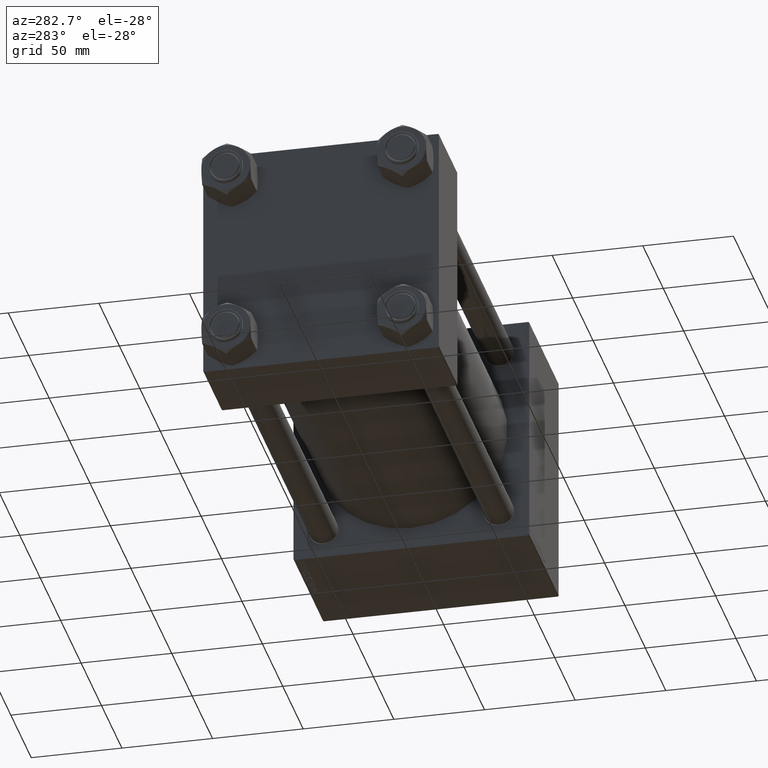
[diagram: clean part render]
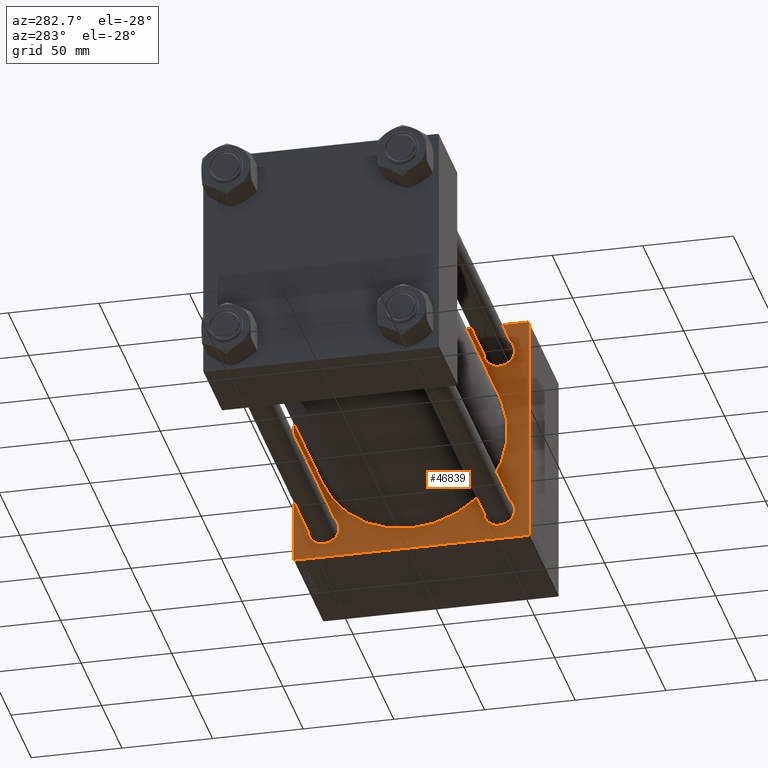
[diagram: same view with one face highlighted and labeled with its STEP entity id]
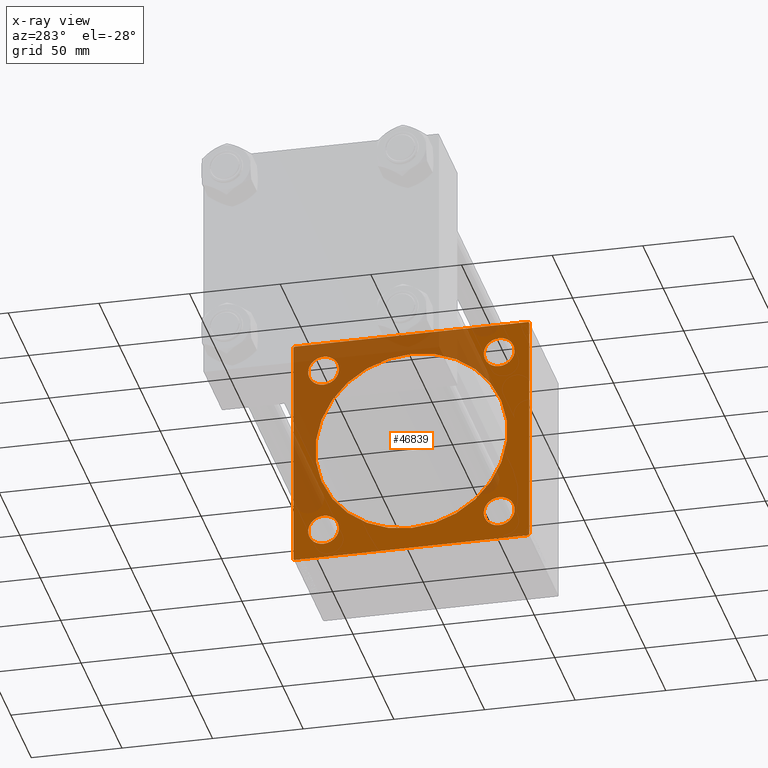
[diagram: x-ray of the same camera — body ghosted, the highlighted face saturated]
A machine part, auxiliary view. The second image highlights one B-rep face of the part: STEP entity #46839.
The next image is the same camera in x-ray: the body ghosted, the highlighted face saturated — about 41% of this face is hidden behind the body in this view.
In plain terms, the highlighted planar face has unit normal (-1, 0, 0).
Its self-contained STEP definition (entity closure, byte-faithful):
#27 = DIRECTION ( 'NONE',  ( 1.000000000000000000, -0.000000000000000000, 0.000000000000000000 ) ) ;
#897 = EDGE_CURVE ( 'NONE', #44893, #13245, #38683, .T. ) ;
#1291 = VECTOR ( 'NONE', #41984, 1000.000000000000114 ) ;
#1517 = LINE ( 'NONE', #13350, #42066 ) ;
#1678 = VERTEX_POINT ( 'NONE', #25959 ) ;
#1711 = AXIS2_PLACEMENT_3D ( 'NONE', #20971, #21480, #37144 ) ;
#2131 = CARTESIAN_POINT ( 'NONE',  ( 220.9999999999999716, 64.74999999999997158, -64.74999999999997158 ) ) ;
#2829 = CIRCLE ( 'NONE', #14321, 8.500000000000007105 ) ;
#3492 = DIRECTION ( 'NONE',  ( -0.000000000000000000, 0.7071067811865573427, 0.7071067811865376918 ) ) ;
#3766 = CARTESIAN_POINT ( 'NONE',  ( 220.9999999999999716, 48.45000000000000995, 39.95000000000000284 ) ) ;
#3803 = VERTEX_POINT ( 'NONE', #3766 ) ;
#4155 = CIRCLE ( 'NONE', #1711, 8.500000000000007105 ) ;
#4550 = CARTESIAN_POINT ( 'NONE',  ( 220.9999999999999716, 48.45000000000000995, -39.95000000000000284 ) ) ;
#4852 = ORIENTED_EDGE ( 'NONE', *, *, #33121, .T. ) ;
#5117 = DIRECTION ( 'NONE',  ( 0.000000000000000000, -1.000000000000000000, -1.067522139062650425E-16 ) ) ;
#5577 = CARTESIAN_POINT ( 'NONE',  ( 220.9999999999999716, -2.602085213965210642E-15, 0.000000000000000000 ) ) ;
#5774 = CARTESIAN_POINT ( 'NONE',  ( 220.9999999999999716, -48.44999999999999574, 48.45000000000003126 ) ) ;
#5874 = DIRECTION ( 'NONE',  ( -1.000000000000000000, 0.000000000000000000, -0.000000000000000000 ) ) ;
#6007 = VECTOR ( 'NONE', #3492, 1000.000000000000114 ) ;
#6073 = ORIENTED_EDGE ( 'NONE', *, *, #24132, .T. ) ;
#6094 = CARTESIAN_POINT ( 'NONE',  ( 220.9999999999999716, -64.49999999999991473, -65.00000000000001421 ) ) ;
#6474 = EDGE_CURVE ( 'NONE', #24850, #32091, #44538, .T. ) ;
#6609 = DIRECTION ( 'NONE',  ( 0.000000000000000000, -0.7071067811865672237, 0.7071067811865279218 ) ) ;
#6830 = ORIENTED_EDGE ( 'NONE', *, *, #897, .T. ) ;
#7081 = DIRECTION ( 'NONE',  ( 0.000000000000000000, 0.000000000000000000, 1.000000000000000000 ) ) ;
#9115 = DIRECTION ( 'NONE',  ( 1.000000000000000000, -0.000000000000000000, 0.000000000000000000 ) ) ;
#10410 = CARTESIAN_POINT ( 'NONE',  ( 220.9999999999999716, 65.00000000000002842, 64.50000000000004263 ) ) ;
#10888 = AXIS2_PLACEMENT_3D ( 'NONE', #33112, #5874, #45709 ) ;
#11089 = CARTESIAN_POINT ( 'NONE',  ( 220.9999999999999716, 64.50000000000005684, 65.00000000000001421 ) ) ;
#12101 = CARTESIAN_POINT ( 'NONE',  ( 220.9999999999999716, 48.45000000000000995, 48.45000000000001705 ) ) ;
#12562 = VERTEX_POINT ( 'NONE', #31875 ) ;
#13245 = VERTEX_POINT ( 'NONE', #25696 ) ;
#13338 = DIRECTION ( 'NONE',  ( 1.000000000000000000, -0.000000000000000000, 0.000000000000000000 ) ) ;
#13350 = CARTESIAN_POINT ( 'NONE',  ( 220.9999999999999716, 65.00000000000002842, 65.00000000000001421 ) ) ;
#13620 = VERTEX_POINT ( 'NONE', #6094 ) ;
#13697 = ORIENTED_EDGE ( 'NONE', *, *, #34358, .T. ) ;
#14106 = VECTOR ( 'NONE', #14716, 1000.000000000000114 ) ;
#14189 = VERTEX_POINT ( 'NONE', #11089 ) ;
#14321 = AXIS2_PLACEMENT_3D ( 'NONE', #50756, #16075, #43824 ) ;
#14363 = FACE_BOUND ( 'NONE', #31339, .T. ) ;
#14692 = ORIENTED_EDGE ( 'NONE', *, *, #30669, .T. ) ;
#14716 = DIRECTION ( 'NONE',  ( -0.000000000000000000, -0.7071067811865474617, -0.7071067811865474617 ) ) ;
#15005 = EDGE_CURVE ( 'NONE', #45073, #23426, #2829, .T. ) ;
#15189 = EDGE_CURVE ( 'NONE', #32091, #24850, #23332, .T. ) ;
#15279 = CARTESIAN_POINT ( 'NONE',  ( 220.9999999999999716, 65.00000000000002842, 65.00000000000001421 ) ) ;
#16075 = DIRECTION ( 'NONE',  ( 1.000000000000000000, -0.000000000000000000, 0.000000000000000000 ) ) ;
#16615 = VERTEX_POINT ( 'NONE', #10410 ) ;
#16990 = EDGE_CURVE ( 'NONE', #3803, #38853, #25053, .T. ) ;
#17378 = ORIENTED_EDGE ( 'NONE', *, *, #15005, .T. ) ;
#17457 = FACE_BOUND ( 'NONE', #36799, .T. ) ;
#18107 = LINE ( 'NONE', #30162, #1291 ) ;
#18194 = LINE ( 'NONE', #26653, #26121 ) ;
#18404 = CARTESIAN_POINT ( 'NONE',  ( 220.9999999999999716, -48.44999999999999574, 39.95000000000001705 ) ) ;
#19641 = CIRCLE ( 'NONE', #39328, 8.500000000000007105 ) ;
#19788 = CARTESIAN_POINT ( 'NONE',  ( 220.9999999999999716, 48.45000000000000995, 48.45000000000001705 ) ) ;
#20825 = ORIENTED_EDGE ( 'NONE', *, *, #15189, .T. ) ;
#20971 = CARTESIAN_POINT ( 'NONE',  ( 220.9999999999999716, -48.44999999999999574, -48.45000000000003126 ) ) ;
#21057 = DIRECTION ( 'NONE',  ( 0.000000000000000000, 0.000000000000000000, 1.000000000000000000 ) ) ;
#21160 = ORIENTED_EDGE ( 'NONE', *, *, #42861, .T. ) ;
#21277 = CIRCLE ( 'NONE', #24561, 8.500000000000007105 ) ;
#21473 = CARTESIAN_POINT ( 'NONE',  ( 220.9999999999999716, 48.45000000000000995, 56.95000000000002416 ) ) ;
#21480 = DIRECTION ( 'NONE',  ( 1.000000000000000000, -0.000000000000000000, 0.000000000000000000 ) ) ;
#22324 = CARTESIAN_POINT ( 'NONE',  ( 220.9999999999999716, -2.602085213965210642E-15, 0.000000000000000000 ) ) ;
#22503 = ORIENTED_EDGE ( 'NONE', *, *, #38954, .T. ) ;
#22802 = EDGE_CURVE ( 'NONE', #14189, #16615, #18107, .T. ) ;
#23332 = CIRCLE ( 'NONE', #36450, 8.500000000000007105 ) ;
#23339 = ORIENTED_EDGE ( 'NONE', *, *, #42119, .T. ) ;
#23426 = VERTEX_POINT ( 'NONE', #4550 ) ;
#23708 = AXIS2_PLACEMENT_3D ( 'NONE', #22324, #26184, #41859 ) ;
#23929 = VECTOR ( 'NONE', #29207, 1000.000000000000000 ) ;
#24014 = CARTESIAN_POINT ( 'NONE',  ( 220.9999999999999716, 65.00000000000002842, -64.49999999999992895 ) ) ;
#24025 = LINE ( 'NONE', #39707, #46245 ) ;
#24132 = EDGE_CURVE ( 'NONE', #38853, #3803, #46501, .T. ) ;
#24251 = ORIENTED_EDGE ( 'NONE', *, *, #22802, .T. ) ;
#24420 = CARTESIAN_POINT ( 'NONE',  ( 220.9999999999999716, -64.99999999999998579, -64.49999999999997158 ) ) ;
#24459 = CARTESIAN_POINT ( 'NONE',  ( 220.9999999999999716, 48.45000000000000995, -56.95000000000002416 ) ) ;
#24561 = AXIS2_PLACEMENT_3D ( 'NONE', #48529, #13338, #21057 ) ;
#24782 = ORIENTED_EDGE ( 'NONE', *, *, #6474, .T. ) ;
#24850 = VERTEX_POINT ( 'NONE', #18404 ) ;
#24901 = EDGE_LOOP ( 'NONE', ( #46923, #29465, #40541, #6830, #44533, #24251, #32918, #4852 ) ) ;
#25053 = CIRCLE ( 'NONE', #27501, 8.500000000000007105 ) ;
#25696 = CARTESIAN_POINT ( 'NONE',  ( 220.9999999999999716, -64.49999999999991473, 65.00000000000000000 ) ) ;
#25959 = CARTESIAN_POINT ( 'NONE',  ( 220.9999999999999716, -48.44999999999999574, -56.95000000000003837 ) ) ;
#26121 = VECTOR ( 'NONE', #6609, 1000.000000000000000 ) ;
#26184 = DIRECTION ( 'NONE',  ( 1.000000000000000000, 0.000000000000000000, 0.000000000000000000 ) ) ;
#26531 = VERTEX_POINT ( 'NONE', #24014 ) ;
#26539 = LINE ( 'NONE', #2131, #14106 ) ;
#26653 = CARTESIAN_POINT ( 'NONE',  ( 220.9999999999999716, -64.74999999999816680, -64.75000000000176215 ) ) ;
#27501 = AXIS2_PLACEMENT_3D ( 'NONE', #12101, #27, #47050 ) ;
#27835 = CARTESIAN_POINT ( 'NONE',  ( 220.9999999999999716, 48.45000000000000995, -48.45000000000001705 ) ) ;
#28085 = DIRECTION ( 'NONE',  ( 0.000000000000000000, 0.000000000000000000, 1.000000000000000000 ) ) ;
#28321 = EDGE_CURVE ( 'NONE', #13620, #50707, #18194, .T. ) ;
#29207 = DIRECTION ( 'NONE',  ( 0.000000000000000000, 0.000000000000000000, -1.000000000000000000 ) ) ;
#29462 = CARTESIAN_POINT ( 'NONE',  ( 220.9999999999999716, -64.99999999999998579, 65.00000000000000000 ) ) ;
#29465 = ORIENTED_EDGE ( 'NONE', *, *, #28321, .T. ) ;
#29671 = DIRECTION ( 'NONE',  ( 0.000000000000000000, 0.000000000000000000, 1.000000000000000000 ) ) ;
#30027 = FACE_OUTER_BOUND ( 'NONE', #24901, .T. ) ;
#30162 = CARTESIAN_POINT ( 'NONE',  ( 220.9999999999999716, 64.75000000000004263, 64.75000000000004263 ) ) ;
#30669 = EDGE_CURVE ( 'NONE', #33888, #33905, #45873, .T. ) ;
#30704 = LINE ( 'NONE', #15279, #47759 ) ;
#31222 = CARTESIAN_POINT ( 'NONE',  ( 220.9999999999999716, -64.74999999999907629, 64.75000000000088107 ) ) ;
#31339 = EDGE_LOOP ( 'NONE', ( #14692, #23339 ) ) ;
#31875 = CARTESIAN_POINT ( 'NONE',  ( 220.9999999999999716, 64.49999999999997158, -64.99999999999998579 ) ) ;
#32091 = VERTEX_POINT ( 'NONE', #33501 ) ;
#32448 = DIRECTION ( 'NONE',  ( 1.000000000000000000, -0.000000000000000000, 0.000000000000000000 ) ) ;
#32692 = EDGE_LOOP ( 'NONE', ( #6073, #44889 ) ) ;
#32918 = ORIENTED_EDGE ( 'NONE', *, *, #46340, .T. ) ;
#33112 = CARTESIAN_POINT ( 'NONE',  ( 220.9999999999999716, 0.000000000000000000, 0.000000000000000000 ) ) ;
#33121 = EDGE_CURVE ( 'NONE', #26531, #12562, #26539, .T. ) ;
#33501 = CARTESIAN_POINT ( 'NONE',  ( 220.9999999999999716, -48.44999999999999574, 56.95000000000003837 ) ) ;
#33888 = VERTEX_POINT ( 'NONE', #48645 ) ;
#33905 = VERTEX_POINT ( 'NONE', #44553 ) ;
#34358 = EDGE_CURVE ( 'NONE', #1678, #41582, #21277, .T. ) ;
#34575 = DIRECTION ( 'NONE',  ( 0.000000000000000000, -1.000000000000000000, -2.135044278125300850E-16 ) ) ;
#34622 = EDGE_LOOP ( 'NONE', ( #21160, #13697 ) ) ;
#35054 = CARTESIAN_POINT ( 'NONE',  ( 220.9999999999999716, -48.44999999999999574, 48.45000000000003126 ) ) ;
#36293 = AXIS2_PLACEMENT_3D ( 'NONE', #35054, #45887, #7081 ) ;
#36450 = AXIS2_PLACEMENT_3D ( 'NONE', #5774, #9115, #29671 ) ;
#36476 = DIRECTION ( 'NONE',  ( 1.000000000000000000, -0.000000000000000000, 0.000000000000000000 ) ) ;
#36711 = FACE_BOUND ( 'NONE', #32692, .T. ) ;
#36799 = EDGE_LOOP ( 'NONE', ( #20825, #24782 ) ) ;
#37144 = DIRECTION ( 'NONE',  ( 0.000000000000000000, 0.000000000000000000, 1.000000000000000000 ) ) ;
#37359 = CARTESIAN_POINT ( 'NONE',  ( 220.9999999999999716, -64.99999999999998579, 64.49999999999994316 ) ) ;
#37473 = EDGE_LOOP ( 'NONE', ( #22503, #17378 ) ) ;
#37849 = AXIS2_PLACEMENT_3D ( 'NONE', #5577, #41047, #40798 ) ;
#38683 = LINE ( 'NONE', #31222, #6007 ) ;
#38853 = VERTEX_POINT ( 'NONE', #21473 ) ;
#38954 = EDGE_CURVE ( 'NONE', #23426, #45073, #19641, .T. ) ;
#39328 = AXIS2_PLACEMENT_3D ( 'NONE', #27835, #32448, #28085 ) ;
#39707 = CARTESIAN_POINT ( 'NONE',  ( 220.9999999999999716, 65.00000000000002842, -64.99999999999998579 ) ) ;
#40541 = ORIENTED_EDGE ( 'NONE', *, *, #44699, .F. ) ;
#40729 = CARTESIAN_POINT ( 'NONE',  ( 220.9999999999999716, -48.44999999999999574, -39.95000000000001705 ) ) ;
#40798 = DIRECTION ( 'NONE',  ( 0.000000000000000000, 0.000000000000000000, -1.000000000000000000 ) ) ;
#41047 = DIRECTION ( 'NONE',  ( 1.000000000000000000, 0.000000000000000000, 0.000000000000000000 ) ) ;
#41098 = PLANE ( 'NONE',  #10888 ) ;
#41582 = VERTEX_POINT ( 'NONE', #40729 ) ;
#41859 = DIRECTION ( 'NONE',  ( 0.000000000000000000, 0.000000000000000000, -1.000000000000000000 ) ) ;
#41931 = CIRCLE ( 'NONE', #37849, 53.00000000000000711 ) ;
#41984 = DIRECTION ( 'NONE',  ( 0.000000000000000000, 0.7071067811865474617, -0.7071067811865474617 ) ) ;
#42066 = VECTOR ( 'NONE', #5117, 1000.000000000000000 ) ;
#42119 = EDGE_CURVE ( 'NONE', #33905, #33888, #41931, .T. ) ;
#42438 = AXIS2_PLACEMENT_3D ( 'NONE', #19788, #36476, #43938 ) ;
#42861 = EDGE_CURVE ( 'NONE', #41582, #1678, #4155, .T. ) ;
#43824 = DIRECTION ( 'NONE',  ( 0.000000000000000000, 0.000000000000000000, 1.000000000000000000 ) ) ;
#43938 = DIRECTION ( 'NONE',  ( 0.000000000000000000, 0.000000000000000000, 1.000000000000000000 ) ) ;
#44533 = ORIENTED_EDGE ( 'NONE', *, *, #45545, .F. ) ;
#44538 = CIRCLE ( 'NONE', #36293, 8.500000000000007105 ) ;
#44553 = CARTESIAN_POINT ( 'NONE',  ( 220.9999999999999716, 3.888542821515762466E-15, -53.00000000000000711 ) ) ;
#44699 = EDGE_CURVE ( 'NONE', #44893, #50707, #45653, .T. ) ;
#44889 = ORIENTED_EDGE ( 'NONE', *, *, #16990, .T. ) ;
#44893 = VERTEX_POINT ( 'NONE', #37359 ) ;
#45073 = VERTEX_POINT ( 'NONE', #24459 ) ;
#45381 = DIRECTION ( 'NONE',  ( 0.000000000000000000, 0.000000000000000000, -1.000000000000000000 ) ) ;
#45459 = FACE_BOUND ( 'NONE', #34622, .T. ) ;
#45545 = EDGE_CURVE ( 'NONE', #14189, #13245, #1517, .T. ) ;
#45653 = LINE ( 'NONE', #29462, #23929 ) ;
#45709 = DIRECTION ( 'NONE',  ( -0.000000000000000000, 0.000000000000000000, 1.000000000000000000 ) ) ;
#45873 = CIRCLE ( 'NONE', #23708, 53.00000000000000711 ) ;
#45887 = DIRECTION ( 'NONE',  ( 1.000000000000000000, -0.000000000000000000, 0.000000000000000000 ) ) ;
#46245 = VECTOR ( 'NONE', #34575, 1000.000000000000000 ) ;
#46340 = EDGE_CURVE ( 'NONE', #16615, #26531, #30704, .T. ) ;
#46501 = CIRCLE ( 'NONE', #42438, 8.500000000000007105 ) ;
#46839 = ADVANCED_FACE ( 'NONE', ( #17457, #36711, #49292, #45459, #14363, #30027 ), #41098, .T. ) ;
#46923 = ORIENTED_EDGE ( 'NONE', *, *, #49123, .T. ) ;
#47050 = DIRECTION ( 'NONE',  ( 0.000000000000000000, 0.000000000000000000, 1.000000000000000000 ) ) ;
#47759 = VECTOR ( 'NONE', #45381, 1000.000000000000000 ) ;
#48529 = CARTESIAN_POINT ( 'NONE',  ( 220.9999999999999716, -48.44999999999999574, -48.45000000000003126 ) ) ;
#48645 = CARTESIAN_POINT ( 'NONE',  ( 220.9999999999999716, -2.602085213965210642E-15, 53.00000000000000711 ) ) ;
#49123 = EDGE_CURVE ( 'NONE', #12562, #13620, #24025, .T. ) ;
#49292 = FACE_BOUND ( 'NONE', #37473, .T. ) ;
#50707 = VERTEX_POINT ( 'NONE', #24420 ) ;
#50756 = CARTESIAN_POINT ( 'NONE',  ( 220.9999999999999716, 48.45000000000000995, -48.45000000000001705 ) ) ;